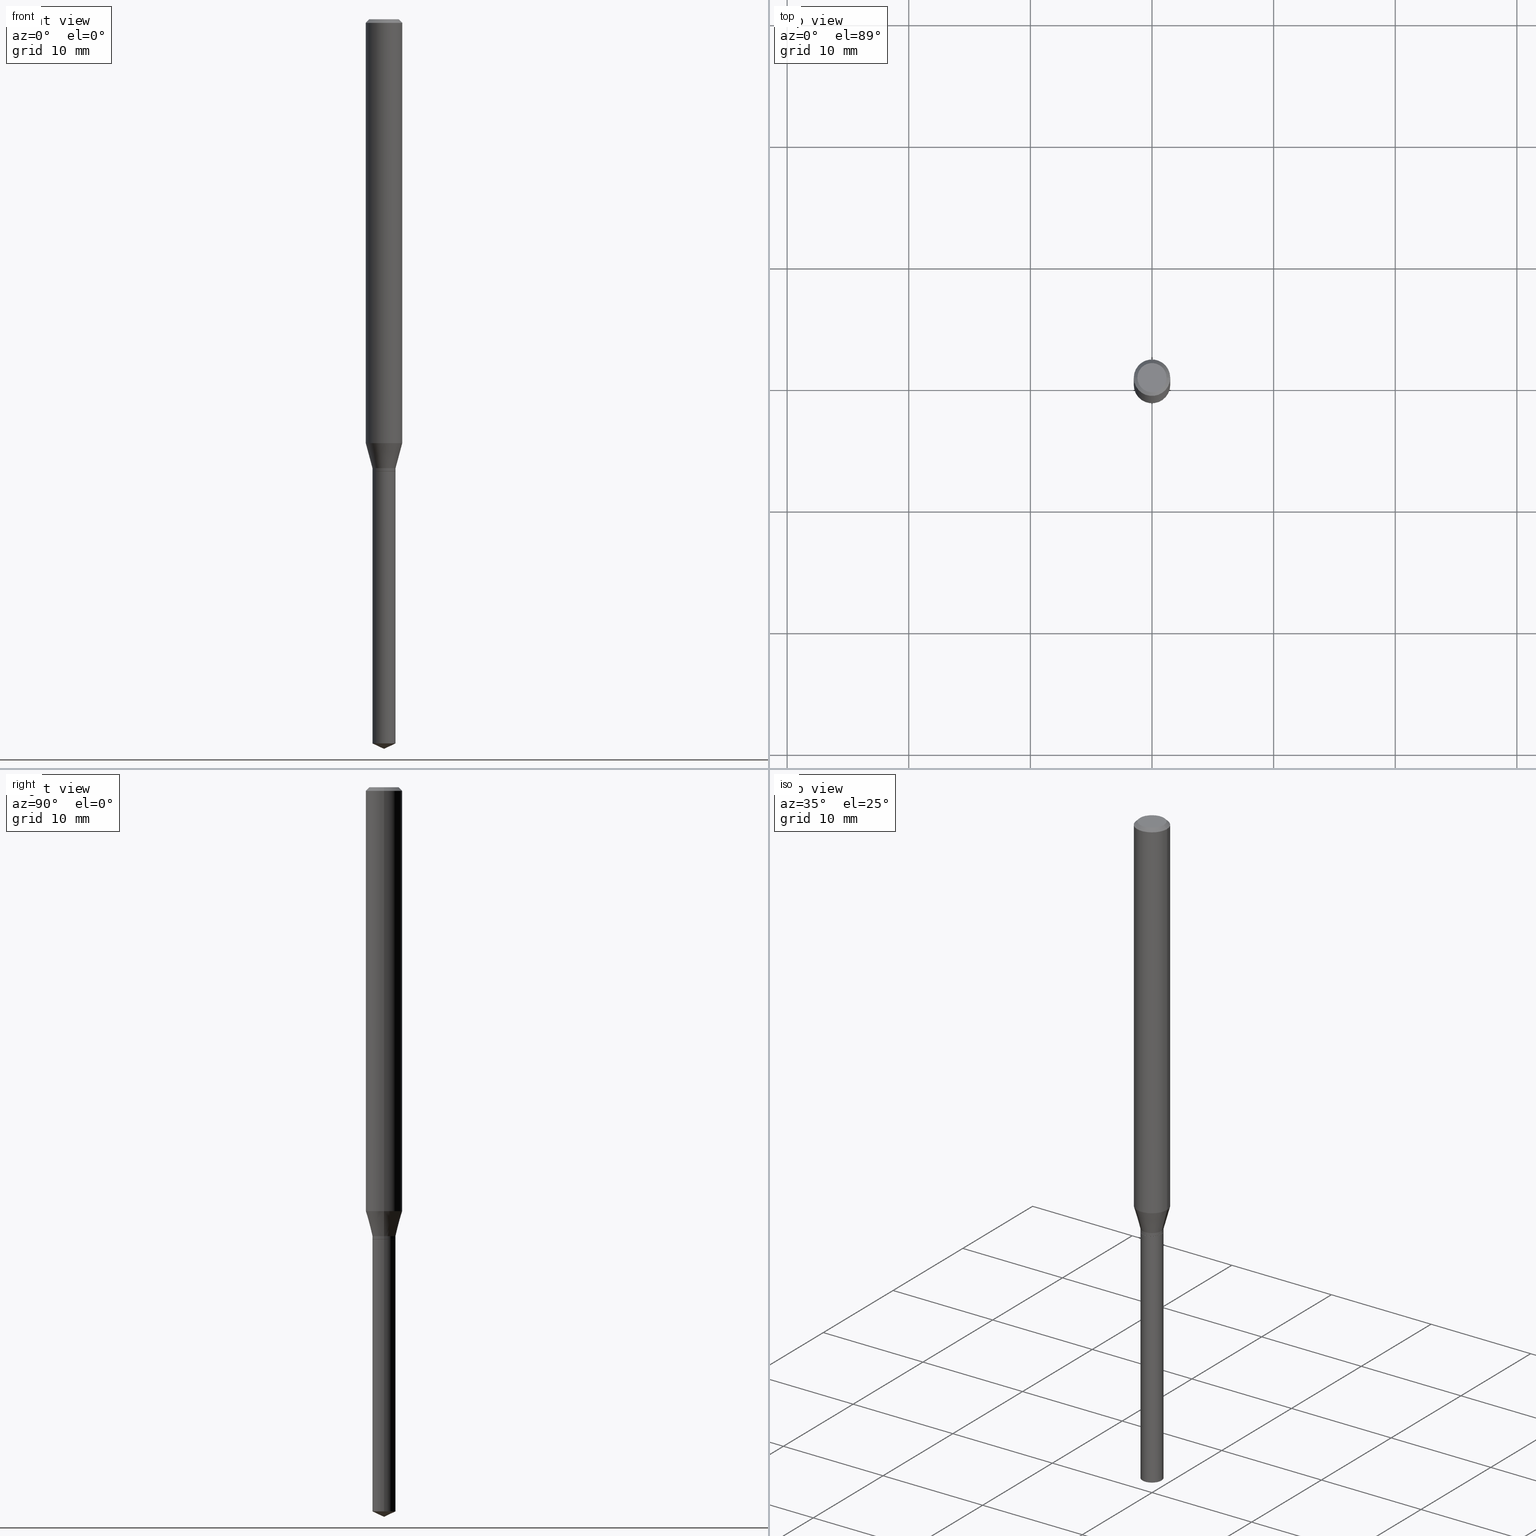
[diagram: canonical four-view strip — front | top / right | iso, engineering-drawing reading convention]
A machine part, canonical four-view strip (front | top / right | iso — engineering-drawing reading convention). The complete STEP part file that produces these views, byte-faithful:
ISO-10303-21;
HEADER;
FILE_DESCRIPTION (( 'STEP AP203' ),
    '1' );
FILE_NAME ('08183.STEP',
    '2024-04-24T13:44:05',
    ( '' ),
    ( '' ),
    'SwSTEP 2.0',
    'SolidWorks 2023',
    '' );
FILE_SCHEMA (( 'CONFIG_CONTROL_DESIGN' ));
ENDSEC;

DATA;
#1 = DIRECTION ( 'NONE',  ( 2.445468806185136597E-29, -3.491481338843145583E-15, -1.000000000000000000 ) ) ;
#2 = CARTESIAN_POINT ( 'NONE',  ( 3.356164079663623520E-29, -4.791712830114137325E-15, -1.372401100016133801 ) ) ;
#3 = ORIENTED_EDGE ( 'NONE', *, *, #98, .T. ) ;
#4 = EDGE_CURVE ( 'NONE', #407, #204, #387, .T. ) ;
#5 = AXIS2_PLACEMENT_3D ( 'NONE', #310, #49, #193 ) ;
#6 = ORIENTED_EDGE ( 'NONE', *, *, #112, .F. ) ;
#7 = APPROVAL_ROLE ( '' ) ;
#8 = DIRECTION ( 'NONE',  ( 0.9063077870366507138, -4.853149677051390623E-15, 0.4226182617406978315 ) ) ;
#9 = DIRECTION ( 'NONE',  ( -2.445468806185136597E-29, 3.491481338843145583E-15, 1.000000000000000000 ) ) ;
#10 = LOCAL_TIME ( 9, 44, 5.000000000000000000, #230 ) ;
#11 = AXIS2_PLACEMENT_3D ( 'NONE', #395, #165, #209 ) ;
#12 = ADVANCED_FACE ( 'NONE', ( #139 ), #67, .T. ) ;
#13 = DIRECTION ( 'NONE',  ( -2.445468806185136877E-29, 3.491481338843145188E-15, 1.000000000000000000 ) ) ;
#14 = CALENDAR_DATE ( 2024, 24, 4 ) ;
#15 = CARTESIAN_POINT ( 'NONE',  ( 3.553755269148240986E-29, -5.073820681606859921E-15, -1.453200000000000269 ) ) ;
#16 = DIRECTION ( 'NONE',  ( -2.445468806185136597E-29, 3.491481338843145583E-15, 1.000000000000000000 ) ) ;
#17 = EDGE_CURVE ( 'NONE', #111, #259, #278, .T. ) ;
#18 = VECTOR ( 'NONE', #13, 39.37007874015748143 ) ;
#19 = DIRECTION ( 'NONE',  ( 1.000000000000000000, -6.982962677686266711E-15, 4.876185090822587894E-29 ) ) ;
#20 = CIRCLE ( 'NONE', #252, 0.03740000000000000269 ) ;
#21 = LINE ( 'NONE', #477, #302 ) ;
#22 = ORIENTED_EDGE ( 'NONE', *, *, #478, .F. ) ;
#23 = CYLINDRICAL_SURFACE ( 'NONE', #58, 0.05905000000000008159 ) ;
#24 = ORIENTED_EDGE ( 'NONE', *, *, #457, .T. ) ;
#25 = DIRECTION ( 'NONE',  ( -2.445468806185136597E-29, 3.491481338843145583E-15, 1.000000000000000000 ) ) ;
#26 = ADVANCED_FACE ( 'NONE', ( #453 ), #144, .T. ) ;
#27 = APPROVAL_PERSON_ORGANIZATION ( #375, #48, #415 ) ;
#28 = ORIENTED_EDGE ( 'NONE', *, *, #122, .F. ) ;
#29 = FACE_OUTER_BOUND ( 'NONE', #335, .T. ) ;
#30 = ORIENTED_EDGE ( 'NONE', *, *, #304, .T. ) ;
#31 = VERTEX_POINT ( 'NONE', #378 ) ;
#32 = ADVANCED_FACE ( 'NONE', ( #338 ), #367, .F. ) ;
#33 = ORIENTED_EDGE ( 'NONE', *, *, #478, .T. ) ;
#34 = LINE ( 'NONE', #38, #455 ) ;
#35 = ORIENTED_EDGE ( 'NONE', *, *, #143, .F. ) ;
#36 = DIRECTION ( 'NONE',  ( -1.000000000000000000, 6.982962677686265922E-15, -4.876176775795935793E-29 ) ) ;
#37 = ORIENTED_EDGE ( 'NONE', *, *, #457, .F. ) ;
#38 = CARTESIAN_POINT ( 'NONE',  ( -0.03740000000000004432, -4.808077698432582531E-15, -1.453200000000000269 ) ) ;
#39 = CC_DESIGN_PERSON_AND_ORGANIZATION_ASSIGNMENT ( #258, #420, ( #404 ) ) ;
#40 = CARTESIAN_POINT ( 'NONE',  ( 3.581144519777514022E-29, -5.112925272601902389E-15, -1.464399999999999924 ) ) ;
#41 = ADVANCED_BREP_SHAPE_REPRESENTATION ( '08183', ( #391, #215, #324 ), #225 ) ;
#42 = VECTOR ( 'NONE', #434, 39.37007874015748143 ) ;
#43 = AXIS2_PLACEMENT_3D ( 'NONE', #64, #248, #358 ) ;
#44 = PERSON_AND_ORGANIZATION_ROLE ( 'classification_officer' ) ;
#45 = DIRECTION ( 'NONE',  ( 1.000000000000000000, -6.982962677686274599E-15, 0.000000000000000000 ) ) ;
#46 = APPROVAL_STATUS ( 'not_yet_approved' ) ;
#47 = CARTESIAN_POINT ( 'NONE',  ( 3.581144519777514022E-29, -5.112925272601902389E-15, -1.464399999999999924 ) ) ;
#48 = APPROVAL ( #74, 'UNSPECIFIED' ) ;
#49 = DIRECTION ( 'NONE',  ( -2.445468806185136597E-29, 3.491481338843145583E-15, 1.000000000000000000 ) ) ;
#50 = LOCAL_TIME ( 9, 44, 5.000000000000000000, #154 ) ;
#51 = PERSON_AND_ORGANIZATION ( #394, #286 ) ;
#52 = CONICAL_SURFACE ( 'NONE', #426, 84.42940631927434936, 1.134464013796316006 ) ;
#53 = FACE_OUTER_BOUND ( 'NONE', #376, .T. ) ;
#54 = PERSON_AND_ORGANIZATION ( #394, #286 ) ;
#55 = DIRECTION ( 'NONE',  ( -0.7071067811868433362, 7.493145998871423856E-15, 0.7071067811862516983 ) ) ;
#56 = ADVANCED_FACE ( 'NONE', ( #306 ), #418, .T. ) ;
#57 = LINE ( 'NONE', #427, #179 ) ;
#58 = AXIS2_PLACEMENT_3D ( 'NONE', #126, #481, #291 ) ;
#59 = DIRECTION ( 'NONE',  ( 1.000000000000000000, -6.982962677686266711E-15, 0.000000000000000000 ) ) ;
#60 = ORIENTED_EDGE ( 'NONE', *, *, #372, .T. ) ;
#61 = DIRECTION ( 'NONE',  ( -2.445468806185136597E-29, 3.491481338843145583E-15, 1.000000000000000000 ) ) ;
#62 = ORIENTED_EDGE ( 'NONE', *, *, #384, .T. ) ;
#63 = ADVANCED_FACE ( 'NONE', ( #82 ), #414, .T. ) ;
#64 = CARTESIAN_POINT ( 'NONE',  ( 3.581144519777514022E-29, -5.112925272601902389E-15, -1.464399999999999924 ) ) ;
#65 = ORIENTED_EDGE ( 'NONE', *, *, #17, .T. ) ;
#66 = CARTESIAN_POINT ( 'NONE',  ( 0.05904999999999999832, -4.535783407291118600E-16, -0.01181000000000007565 ) ) ;
#67 = CONICAL_SURFACE ( 'NONE', #339, 0.05904999999999999832, 0.7853981633974450594 ) ;
#68 = ORIENTED_EDGE ( 'NONE', *, *, #4, .T. ) ;
#69 = CARTESIAN_POINT ( 'NONE',  ( -0.03690000000000000224, -4.848085775932315486E-15, -1.464399999999999924 ) ) ;
#70 = ADVANCED_FACE ( 'NONE', ( #107 ), #257, .T. ) ;
#71 = EDGE_LOOP ( 'NONE', ( #486, #294, #416, #3 ) ) ;
#72 = CARTESIAN_POINT ( 'NONE',  ( 0.000000000000000000, 0.000000000000000000, 0.000000000000000000 ) ) ;
#73 = CARTESIAN_POINT ( 'NONE',  ( 0.000000000000000000, 0.000000000000000000, 0.000000000000000000 ) ) ;
#74 = APPROVAL_STATUS ( 'not_yet_approved' ) ;
#75 = SECURITY_CLASSIFICATION ( '', '', #276 ) ;
#76 = ORIENTED_EDGE ( 'NONE', *, *, #98, .F. ) ;
#77 = AXIS2_PLACEMENT_3D ( 'NONE', #343, #9, #231 ) ;
#78 = MECHANICAL_CONTEXT ( 'NONE', #412, 'mechanical' ) ;
#79 = EDGE_LOOP ( 'NONE', ( #226, #97, #301 ) ) ;
#80 = CARTESIAN_POINT ( 'NONE',  ( 3.356164079663623520E-29, -4.791712830114137325E-15, -1.372401100016133801 ) ) ;
#81 = EDGE_LOOP ( 'NONE', ( #216, #419, #22, #206 ) ) ;
#82 = FACE_OUTER_BOUND ( 'NONE', #441, .T. ) ;
#83 = CONICAL_SURFACE ( 'NONE', #316, 84.42940631927434936, 1.134464013796316006 ) ;
#84 = CIRCLE ( 'NONE', #227, 0.04724000000000000421 ) ;
#85 = CARTESIAN_POINT ( 'NONE',  ( -0.03740000000000000269, -4.847182289427624999E-15, -1.464399999999999924 ) ) ;
#86 = DATE_TIME_ROLE ( 'classification_date' ) ;
#87 = CARTESIAN_POINT ( 'NONE',  ( -0.03690000000000000224, -4.850735003106425898E-15, -1.464399999999999924 ) ) ;
#88 = CALENDAR_DATE ( 2024, 24, 4 ) ;
#89 = CARTESIAN_POINT ( 'NONE',  ( 5.776197320209293305E-29, -8.246878922347511025E-15, -2.362000000000000099 ) ) ;
#90 = AXIS2_PLACEMENT_3D ( 'NONE', #47, #272, #392 ) ;
#91 = LINE ( 'NONE', #237, #463 ) ;
#92 = DIRECTION ( 'NONE',  ( -2.445468806185136597E-29, 3.491481338843145583E-15, 1.000000000000000000 ) ) ;
#93 = DIRECTION ( 'NONE',  ( -2.445468806185136597E-29, 3.491481338843145583E-15, 1.000000000000000000 ) ) ;
#94 = EDGE_LOOP ( 'NONE', ( #249, #37 ) ) ;
#95 = CIRCLE ( 'NONE', #90, 0.03740000000000000269 ) ;
#96 = FACE_OUTER_BOUND ( 'NONE', #254, .T. ) ;
#97 = ORIENTED_EDGE ( 'NONE', *, *, #122, .T. ) ;
#98 = EDGE_CURVE ( 'NONE', #130, #411, #435, .T. ) ;
#99 = CARTESIAN_POINT ( 'NONE',  ( 0.05905000000000017180, -5.204056776231511456E-15, -1.372401100016133801 ) ) ;
#100 = ORIENTED_EDGE ( 'NONE', *, *, #355, .F. ) ;
#101 = DIRECTION ( 'NONE',  ( -2.445468806185136597E-29, 3.491481338843145583E-15, 1.000000000000000000 ) ) ;
#102 = EDGE_LOOP ( 'NONE', ( #175, #219, #240, #439 ) ) ;
#103 = EDGE_CURVE ( 'NONE', #403, #320, #197, .T. ) ;
#104 = CARTESIAN_POINT ( 'NONE',  ( -0.03740000000000000269, -6.383713560400863515E-15, -1.464399999999999924 ) ) ;
#105 = AXIS2_PLACEMENT_3D ( 'NONE', #195, #121, #203 ) ;
#106 = EDGE_LOOP ( 'NONE', ( #68, #264, #328, #246 ) ) ;
#107 = FACE_OUTER_BOUND ( 'NONE', #484, .T. ) ;
#108 = CARTESIAN_POINT ( 'NONE',  ( 2.888098660104664642E-31, -4.123439461173780879E-17, -0.01181000000000007565 ) ) ;
#109 = PERSON_AND_ORGANIZATION ( #394, #286 ) ;
#110 = AXIS2_PLACEMENT_3D ( 'NONE', #184, #261, #422 ) ;
#111 = VERTEX_POINT ( 'NONE', #158 ) ;
#112 = EDGE_CURVE ( 'NONE', #259, #170, #161, .T. ) ;
#113 = DIRECTION ( 'NONE',  ( 0.2588190451025216832, 1.565188264969619798E-15, 0.9659258262890679791 ) ) ;
#114 = CARTESIAN_POINT ( 'NONE',  ( 2.888098660104664642E-31, -4.123439461173780879E-17, -0.01181000000000007565 ) ) ;
#115 = DIRECTION ( 'NONE',  ( -0.2588190451025216832, 5.211531920934551831E-15, 0.9659258262890679791 ) ) ;
#116 = ORIENTED_EDGE ( 'NONE', *, *, #368, .F. ) ;
#117 = ADVANCED_FACE ( 'NONE', ( #196 ), #251, .T. ) ;
#118 = CARTESIAN_POINT ( 'NONE',  ( -0.05904999999999999832, -1.996898126896595667E-15, -0.01181000000000007565 ) ) ;
#119 = DIRECTION ( 'NONE',  ( 1.000000000000000000, -6.982962677686266711E-15, 0.000000000000000000 ) ) ;
#120 = CARTESIAN_POINT ( 'NONE',  ( 0.04724000000000000421, -3.852183633974369345E-16, -3.380025165621689721E-19 ) ) ;
#121 = DIRECTION ( 'NONE',  ( -2.445468806185136597E-29, 3.491481338843145583E-15, 1.000000000000000000 ) ) ;
#122 = EDGE_CURVE ( 'NONE', #224, #407, #57, .T. ) ;
#123 = AXIS2_PLACEMENT_3D ( 'NONE', #187, #340, #190 ) ;
#124 = LINE ( 'NONE', #89, #347 ) ;
#125 = CARTESIAN_POINT ( 'NONE',  ( 3.579921785374421781E-29, -5.111179531932481675E-15, -1.463900000000000201 ) ) ;
#126 = CARTESIAN_POINT ( 'NONE',  ( 0.000000000000000000, 0.000000000000000000, 0.000000000000000000 ) ) ;
#127 = EDGE_CURVE ( 'NONE', #303, #354, #208, .T. ) ;
#128 = ORIENTED_EDGE ( 'NONE', *, *, #466, .T. ) ;
#129 = CARTESIAN_POINT ( 'NONE',  ( 0.05905000000000008159, -4.123439461173746736E-16, 2.879382386107504424E-30 ) ) ;
#130 = VERTEX_POINT ( 'NONE', #118 ) ;
#131 = DIRECTION ( 'NONE',  ( -2.445468806185136597E-29, 3.491481338843145583E-15, 1.000000000000000000 ) ) ;
#132 = VERTEX_POINT ( 'NONE', #120 ) ;
#133 = ADVANCED_FACE ( 'NONE', ( #461 ), #236, .T. ) ;
#134 = DIRECTION ( 'NONE',  ( 1.000000000000000000, -6.982962677686266711E-15, 0.000000000000000000 ) ) ;
#135 = ORIENTED_EDGE ( 'NONE', *, *, #232, .F. ) ;
#136 = APPROVAL_PERSON_ORGANIZATION ( #109, #210, #381 ) ;
#137 = APPROVAL_DATE_TIME ( #149, #48 ) ;
#138 = VECTOR ( 'NONE', #348, 39.37007874015748143 ) ;
#139 = FACE_OUTER_BOUND ( 'NONE', #102, .T. ) ;
#140 = DIRECTION ( 'NONE',  ( 1.000000000000000000, -6.982962677686268288E-15, 0.000000000000000000 ) ) ;
#141 = DIRECTION ( 'NONE',  ( -2.445468806185136597E-29, 3.491481338843145583E-15, 1.000000000000000000 ) ) ;
#142 = DATE_TIME_ROLE ( 'creation_date' ) ;
#143 = EDGE_CURVE ( 'NONE', #331, #130, #153, .T. ) ;
#144 = CYLINDRICAL_SURFACE ( 'NONE', #409, 0.03740000000000000269 ) ;
#145 = LENGTH_MEASURE_WITH_UNIT ( LENGTH_MEASURE( 0.02539999999999999897 ), #212 );
#146 = VECTOR ( 'NONE', #113, 39.37007874015748143 ) ;
#147 = EDGE_LOOP ( 'NONE', ( #479, #285 ) ) ;
#148 = CONICAL_SURFACE ( 'NONE', #105, 0.03740000000000004432, 0.2617993877991502960 ) ;
#149 = DATE_AND_TIME ( #364, #351 ) ;
#150 = EDGE_LOOP ( 'NONE', ( #476, #30, #177, #116 ) ) ;
#151 = EDGE_CURVE ( 'NONE', #407, #354, #91, .T. ) ;
#152 = DATE_AND_TIME ( #159, #10 ) ;
#153 = LINE ( 'NONE', #192, #42 ) ;
#154 = COORDINATED_UNIVERSAL_TIME_OFFSET ( 5, 0, .BEHIND. ) ;
#155 = LINE ( 'NONE', #275, #242 ) ;
#156 = CC_DESIGN_APPROVAL ( #380, ( #75 ) ) ;
#157 = CIRCLE ( 'NONE', #5, 0.05904999999999999832 ) ;
#158 = CARTESIAN_POINT ( 'NONE',  ( 0.03690000000000000224, -5.370596595408524994E-15, -1.464399999999999924 ) ) ;
#159 = CALENDAR_DATE ( 2024, 24, 4 ) ;
#160 = DIRECTION ( 'NONE',  ( -0.9063077870366507138, 7.915267918739014631E-15, 0.4226182617406978315 ) ) ;
#161 = LINE ( 'NONE', #87, #398 ) ;
#162 = CLOSED_SHELL ( 'NONE', ( #417, #12, #70, #117, #63, #280, #256, #322, #56, #32, #405, #362 ) ) ;
#163 = AXIS2_PLACEMENT_3D ( 'NONE', #108, #382, #277 ) ;
#164 = AXIS2_PLACEMENT_3D ( 'NONE', #201, #25, #473 ) ;
#165 = DIRECTION ( 'NONE',  ( -2.445468806185136597E-29, 3.491481338843145583E-15, 1.000000000000000000 ) ) ;
#166 = EDGE_CURVE ( 'NONE', #354, #303, #95, .T. ) ;
#167 = CARTESIAN_POINT ( 'NONE',  ( 0.000000000000000000, 0.000000000000000000, 0.000000000000000000 ) ) ;
#168 = ORIENTED_EDGE ( 'NONE', *, *, #127, .F. ) ;
#169 = DIRECTION ( 'NONE',  ( 1.000000000000000000, -6.982962677686274599E-15, 0.000000000000000000 ) ) ;
#170 = VERTEX_POINT ( 'NONE', #229 ) ;
#171 = AXIS2_PLACEMENT_3D ( 'NONE', #174, #327, #483 ) ;
#172 = CARTESIAN_POINT ( 'NONE',  ( 3.579921785374421781E-29, -5.111179531932481675E-15, -1.463900000000000201 ) ) ;
#173 = ORIENTED_EDGE ( 'NONE', *, *, #488, .T. ) ;
#174 = CARTESIAN_POINT ( 'NONE',  ( 3.581144519777514022E-29, -5.112925272601902389E-15, -1.464399999999999924 ) ) ;
#175 = ORIENTED_EDGE ( 'NONE', *, *, #384, .F. ) ;
#176 = DIRECTION ( 'NONE',  ( 2.438088387897960049E-29, -3.491481338843145188E-15, -1.000000000000000000 ) ) ;
#177 = ORIENTED_EDGE ( 'NONE', *, *, #103, .T. ) ;
#178 = APPLICATION_PROTOCOL_DEFINITION ( 'international standard', 'config_control_design', 1994, #379 ) ;
#179 = VECTOR ( 'NONE', #8, 39.37007874015748143 ) ;
#180 = DIRECTION ( 'NONE',  ( -2.445468806185136597E-29, 3.491481338843145583E-15, 1.000000000000000000 ) ) ;
#181 = EDGE_CURVE ( 'NONE', #170, #31, #155, .T. ) ;
#182 = DIRECTION ( 'NONE',  ( -2.445468806185136597E-29, 3.491481338843145583E-15, 1.000000000000000000 ) ) ;
#183 = DIRECTION ( 'NONE',  ( 1.000000000000000000, -6.982962677686261189E-15, 0.000000000000000000 ) ) ;
#184 = CARTESIAN_POINT ( 'NONE',  ( 3.581144519777514022E-29, -5.112925272601902389E-15, -1.464399999999999924 ) ) ;
#185 = DIRECTION ( 'NONE',  ( -2.445468806185136597E-29, 3.491481338843145583E-15, 1.000000000000000000 ) ) ;
#186 = DIRECTION ( 'NONE',  ( 1.000000000000000000, -6.982962677686268288E-15, 0.000000000000000000 ) ) ;
#187 = CARTESIAN_POINT ( 'NONE',  ( 4.132873053354867254E-48, -5.900647395337818946E-34, -1.690012582823346072E-19 ) ) ;
#188 = AXIS2_PLACEMENT_3D ( 'NONE', #334, #298, #451 ) ;
#189 = EDGE_CURVE ( 'NONE', #111, #403, #315, .T. ) ;
#190 = DIRECTION ( 'NONE',  ( -1.000000000000000000, 6.982962677686265922E-15, -4.876176775795935793E-29 ) ) ;
#191 = COORDINATED_UNIVERSAL_TIME_OFFSET ( 5, 0, .BEHIND. ) ;
#192 = CARTESIAN_POINT ( 'NONE',  ( -0.05905000000000008159, 4.195754854663397395E-16, -2.904631170795525745E-30 ) ) ;
#193 = DIRECTION ( 'NONE',  ( 1.000000000000000000, -6.982962677686266711E-15, 0.000000000000000000 ) ) ;
#194 = EDGE_CURVE ( 'NONE', #224, #204, #124, .T. ) ;
#195 = CARTESIAN_POINT ( 'NONE',  ( 3.553755269148240986E-29, -5.073820681606859921E-15, -1.453200000000000269 ) ) ;
#196 = FACE_OUTER_BOUND ( 'NONE', #81, .T. ) ;
#197 = LINE ( 'NONE', #465, #18 ) ;
#198 = ADVANCED_FACE ( 'NONE', ( #281 ), #52, .T. ) ;
#199 = PRODUCT_DEFINITION_FORMATION_WITH_SPECIFIED_SOURCE ( 'ANY', '', #404, .NOT_KNOWN. ) ;
#200 = VECTOR ( 'NONE', #445, 39.37007874015748143 ) ;
#201 = CARTESIAN_POINT ( 'NONE',  ( 3.553755269148240986E-29, -5.073820681606859921E-15, -1.453200000000000269 ) ) ;
#202 = ORIENTED_EDGE ( 'NONE', *, *, #372, .F. ) ;
#203 = DIRECTION ( 'NONE',  ( 1.000000000000000000, -6.982962677686266711E-15, 0.000000000000000000 ) ) ;
#204 = VERTEX_POINT ( 'NONE', #464 ) ;
#205 = DIRECTION ( 'NONE',  ( -2.445468806185136597E-29, 3.491481338843145583E-15, 1.000000000000000000 ) ) ;
#206 = ORIENTED_EDGE ( 'NONE', *, *, #488, .F. ) ;
#207 = LOCAL_TIME ( 9, 44, 5.000000000000000000, #191 ) ;
#208 = CIRCLE ( 'NONE', #77, 0.03740000000000000269 ) ;
#209 = DIRECTION ( 'NONE',  ( 1.000000000000000000, -6.982962677686261189E-15, 0.000000000000000000 ) ) ;
#210 = APPROVAL ( #46, 'UNSPECIFIED' ) ;
#211 = ORIENTED_EDGE ( 'NONE', *, *, #181, .T. ) ;
#212 =( LENGTH_UNIT ( ) NAMED_UNIT ( * ) SI_UNIT ( $, .METRE. ) );
#213 = ORIENTED_EDGE ( 'NONE', *, *, #438, .F. ) ;
#214 = DIRECTION ( 'NONE',  ( 1.000000000000000000, 0.000000000000000000, 0.000000000000000000 ) ) ;
#215 = MANIFOLD_SOLID_BREP ( 'Body-Move/Copy2[2]', #162 ) ;
#216 = ORIENTED_EDGE ( 'NONE', *, *, #355, .T. ) ;
#217 = DIRECTION ( 'NONE',  ( -2.445468806185136597E-29, 3.491481338843145583E-15, 1.000000000000000000 ) ) ;
#218 = CONICAL_SURFACE ( 'NONE', #11, 0.03690000000000000224, 0.7853981633978666110 ) ;
#219 = ORIENTED_EDGE ( 'NONE', *, *, #329, .T. ) ;
#220 =( NAMED_UNIT ( * ) PLANE_ANGLE_UNIT ( ) SI_UNIT ( $, .RADIAN. ) );
#221 = ORIENTED_EDGE ( 'NONE', *, *, #189, .T. ) ;
#222 =( NAMED_UNIT ( * ) SI_UNIT ( $, .STERADIAN. ) SOLID_ANGLE_UNIT ( ) );
#223 = EDGE_CURVE ( 'NONE', #204, #303, #270, .T. ) ;
#224 = VERTEX_POINT ( 'NONE', #430 ) ;
#225 =( GEOMETRIC_REPRESENTATION_CONTEXT ( 3 ) GLOBAL_UNCERTAINTY_ASSIGNED_CONTEXT ( ( #274 ) ) GLOBAL_UNIT_ASSIGNED_CONTEXT ( ( #300, #220, #222 ) ) REPRESENTATION_CONTEXT ( 'NONE', 'WORKASPACE' ) );
#226 = ORIENTED_EDGE ( 'NONE', *, *, #194, .F. ) ;
#227 = AXIS2_PLACEMENT_3D ( 'NONE', #284, #410, #400 ) ;
#228 = PERSON_AND_ORGANIZATION_ROLE ( 'creator' ) ;
#229 = CARTESIAN_POINT ( 'NONE',  ( -0.03740000000000004432, -4.826757123595393013E-15, -1.463900000000000201 ) ) ;
#230 = COORDINATED_UNIVERSAL_TIME_OFFSET ( 5, 0, .BEHIND. ) ;
#231 = DIRECTION ( 'NONE',  ( 1.000000000000000000, -6.982962677686274599E-15, 0.000000000000000000 ) ) ;
#232 = EDGE_CURVE ( 'NONE', #411, #130, #157, .T. ) ;
#233 = FACE_OUTER_BOUND ( 'NONE', #79, .T. ) ;
#234 = CC_DESIGN_APPROVAL ( #210, ( #199 ) ) ;
#235 = AXIS2_PLACEMENT_3D ( 'NONE', #456, #185, #45 ) ;
#236 = CYLINDRICAL_SURFACE ( 'NONE', #262, 0.03740000000000000269 ) ;
#237 = CARTESIAN_POINT ( 'NONE',  ( 0.03740000000000000269, -5.374088076747368790E-15, -1.464399999999999924 ) ) ;
#238 = ADVANCED_FACE ( 'NONE', ( #233 ), #83, .T. ) ;
#239 = FACE_OUTER_BOUND ( 'NONE', #150, .T. ) ;
#240 = ORIENTED_EDGE ( 'NONE', *, *, #232, .T. ) ;
#241 = CIRCLE ( 'NONE', #250, 0.05905000000000017180 ) ;
#242 = VECTOR ( 'NONE', #312, 39.37007874015748143 ) ;
#243 = CARTESIAN_POINT ( 'NONE',  ( -0.04724000000000000421, 3.504923541997677355E-16, -3.380025165670481712E-19 ) ) ;
#244 = ORIENTED_EDGE ( 'NONE', *, *, #314, .T. ) ;
#245 = FACE_OUTER_BOUND ( 'NONE', #94, .T. ) ;
#246 = ORIENTED_EDGE ( 'NONE', *, *, #151, .F. ) ;
#247 = CC_DESIGN_PERSON_AND_ORGANIZATION_ASSIGNMENT ( #51, #44, ( #75 ) ) ;
#248 = DIRECTION ( 'NONE',  ( -2.438088387897960049E-29, 3.491481338843145188E-15, 1.000000000000000000 ) ) ;
#249 = ORIENTED_EDGE ( 'NONE', *, *, #17, .F. ) ;
#250 = AXIS2_PLACEMENT_3D ( 'NONE', #80, #182, #140 ) ;
#251 = CONICAL_SURFACE ( 'NONE', #389, 0.03740000000000004432, 0.2617993877991502960 ) ;
#252 = AXIS2_PLACEMENT_3D ( 'NONE', #293, #61, #169 ) ;
#253 = CARTESIAN_POINT ( 'NONE',  ( 0.05904999999999999832, -4.463468013801466955E-16, -0.01181000000000007565 ) ) ;
#254 = EDGE_LOOP ( 'NONE', ( #6, #24, #221, #283 ) ) ;
#255 = COORDINATED_UNIVERSAL_TIME_OFFSET ( 5, 0, .BEHIND. ) ;
#256 = ADVANCED_FACE ( 'NONE', ( #53 ), #148, .T. ) ;
#257 = CYLINDRICAL_SURFACE ( 'NONE', #480, 0.05905000000000008159 ) ;
#258 = PERSON_AND_ORGANIZATION ( #394, #286 ) ;
#259 = VERTEX_POINT ( 'NONE', #69 ) ;
#260 = AXIS2_PLACEMENT_3D ( 'NONE', #2, #217, #186 ) ;
#261 = DIRECTION ( 'NONE',  ( -2.445468806185136597E-29, 3.491481338843145583E-15, 1.000000000000000000 ) ) ;
#262 = AXIS2_PLACEMENT_3D ( 'NONE', #349, #16, #431 ) ;
#263 = ORIENTED_EDGE ( 'NONE', *, *, #390, .T. ) ;
#264 = ORIENTED_EDGE ( 'NONE', *, *, #223, .T. ) ;
#265 = CARTESIAN_POINT ( 'NONE',  ( 3.581144519777514022E-29, -5.112925272601902389E-15, -1.464399999999999924 ) ) ;
#266 = DIRECTION ( 'NONE',  ( 2.445468806185136597E-29, -3.491481338843145583E-15, -1.000000000000000000 ) ) ;
#267 = PRODUCT_DEFINITION_SHAPE ( 'NONE', 'NONE',  #432 ) ;
#268 = DATE_AND_TIME ( #88, #50 ) ;
#269 = CIRCLE ( 'NONE', #110, 0.03690000000000000224 ) ;
#270 = LINE ( 'NONE', #85, #295 ) ;
#271 = CIRCLE ( 'NONE', #332, 0.03740000000000004432 ) ;
#272 = DIRECTION ( 'NONE',  ( -2.445468806185136597E-29, 3.491481338843145583E-15, 1.000000000000000000 ) ) ;
#273 = CC_DESIGN_PERSON_AND_ORGANIZATION_ASSIGNMENT ( #385, #228, ( #199 ) ) ;
#274 = UNCERTAINTY_MEASURE_WITH_UNIT (LENGTH_MEASURE( 1.000000000000000082E-05 ), #300, 'distance_accuracy_value', 'NONE');
#275 = CARTESIAN_POINT ( 'NONE',  ( -0.03740000000000004432, 2.657429831742777844E-16, -1.839681723755337142E-30 ) ) ;
#276 = SECURITY_CLASSIFICATION_LEVEL ( 'unclassified' ) ;
#277 = DIRECTION ( 'NONE',  ( 1.000000000000000000, -6.982962677686266711E-15, 0.000000000000000000 ) ) ;
#278 = CIRCLE ( 'NONE', #287, 0.03690000000000000224 ) ;
#279 = CIRCLE ( 'NONE', #449, 0.04724000000000000421 ) ;
#280 = ADVANCED_FACE ( 'NONE', ( #239 ), #282, .T. ) ;
#281 = FACE_OUTER_BOUND ( 'NONE', #341, .T. ) ;
#282 = CYLINDRICAL_SURFACE ( 'NONE', #487, 0.03740000000000004432 ) ;
#283 = ORIENTED_EDGE ( 'NONE', *, *, #304, .F. ) ;
#284 = CARTESIAN_POINT ( 'NONE',  ( 8.265746106709734507E-48, -1.180129479067563789E-33, -3.380025165646692144E-19 ) ) ;
#285 = ORIENTED_EDGE ( 'NONE', *, *, #127, .T. ) ;
#286 = ORGANIZATION ( 'UNSPECIFIED', 'UNSPECIFIED', '' ) ;
#287 = AXIS2_PLACEMENT_3D ( 'NONE', #490, #141, #183 ) ;
#288 = DIRECTION ( 'NONE',  ( -2.445468806185136877E-29, 3.491481338843145188E-15, 1.000000000000000000 ) ) ;
#289 = ORIENTED_EDGE ( 'NONE', *, *, #143, .T. ) ;
#290 = EDGE_CURVE ( 'NONE', #363, #130, #21, .T. ) ;
#291 = DIRECTION ( 'NONE',  ( 1.000000000000000000, -6.982962677686267499E-15, 4.876176775795936353E-29 ) ) ;
#292 = EDGE_LOOP ( 'NONE', ( #244, #62 ) ) ;
#293 = CARTESIAN_POINT ( 'NONE',  ( 5.733548573088630177E-29, -8.185987814548377053E-15, -2.344560093585003280 ) ) ;
#294 = ORIENTED_EDGE ( 'NONE', *, *, #314, .F. ) ;
#295 = VECTOR ( 'NONE', #383, 39.37007874015748143 ) ;
#296 = PRODUCT_RELATED_PRODUCT_CATEGORY ( 'detail', '', ( #404 ) ) ;
#297 = AXIS2_PLACEMENT_3D ( 'NONE', #125, #93, #59 ) ;
#298 = DIRECTION ( 'NONE',  ( -2.445468806185136597E-29, 3.491481338843145583E-15, 1.000000000000000000 ) ) ;
#299 = DIRECTION ( 'NONE',  ( 1.000000000000000000, -6.982962677686267499E-15, 4.876176775795936353E-29 ) ) ;
#300 =( CONVERSION_BASED_UNIT ( 'INCH', #145 ) LENGTH_UNIT ( ) NAMED_UNIT ( #353 ) );
#301 = ORIENTED_EDGE ( 'NONE', *, *, #390, .F. ) ;
#302 = VECTOR ( 'NONE', #447, 39.37007874015748143 ) ;
#303 = VERTEX_POINT ( 'NONE', #104 ) ;
#304 = EDGE_CURVE ( 'NONE', #170, #403, #369, .T. ) ;
#305 = PERSON_AND_ORGANIZATION ( #394, #286 ) ;
#306 = FACE_OUTER_BOUND ( 'NONE', #71, .T. ) ;
#307 = PERSON_AND_ORGANIZATION ( #394, #286 ) ;
#308 = DIRECTION ( 'NONE',  ( -2.445468806185136597E-29, 3.491481338843145583E-15, 1.000000000000000000 ) ) ;
#309 = CC_DESIGN_DATE_AND_TIME_ASSIGNMENT ( #370, #142, ( #432 ) ) ;
#310 = CARTESIAN_POINT ( 'NONE',  ( 2.888098660104664642E-31, -4.123439461173780879E-17, -0.01181000000000007565 ) ) ;
#311 = CIRCLE ( 'NONE', #164, 0.03740000000000004432 ) ;
#312 = DIRECTION ( 'NONE',  ( -2.445468806185136877E-29, 3.491481338843145188E-15, 1.000000000000000000 ) ) ;
#313 = CARTESIAN_POINT ( 'NONE',  ( -9.050210213589845843E-28, 1.292130163076976058E-13, 37.00807874015747956 ) ) ;
#314 = EDGE_CURVE ( 'NONE', #363, #132, #279, .T. ) ;
#315 = LINE ( 'NONE', #393, #138 ) ;
#316 = AXIS2_PLACEMENT_3D ( 'NONE', #346, #388, #468 ) ;
#317 = CIRCLE ( 'NONE', #297, 0.03740000000000004432 ) ;
#318 = CARTESIAN_POINT ( 'NONE',  ( 0.03740000000000000269, -5.374088076747368790E-15, -1.464399999999999924 ) ) ;
#319 = DIRECTION ( 'NONE',  ( 1.000000000000000000, -6.982962677686266711E-15, 4.876176775795935793E-29 ) ) ;
#320 = VERTEX_POINT ( 'NONE', #475 ) ;
#321 = LINE ( 'NONE', #129, #471 ) ;
#322 = ADVANCED_FACE ( 'NONE', ( #437 ), #23, .T. ) ;
#323 = ORIENTED_EDGE ( 'NONE', *, *, #368, .T. ) ;
#324 = AXIS2_PLACEMENT_3D ( 'NONE', #72, #489, #214 ) ;
#325 = CARTESIAN_POINT ( 'NONE',  ( 8.265746106709734507E-48, -1.180129479067563789E-33, -3.380025165646692144E-19 ) ) ;
#326 = ORIENTED_EDGE ( 'NONE', *, *, #399, .T. ) ;
#327 = DIRECTION ( 'NONE',  ( -2.445468806185136597E-29, 3.491481338843145583E-15, 1.000000000000000000 ) ) ;
#328 = ORIENTED_EDGE ( 'NONE', *, *, #166, .F. ) ;
#329 = EDGE_CURVE ( 'NONE', #132, #411, #361, .T. ) ;
#330 = LINE ( 'NONE', #336, #146 ) ;
#331 = VERTEX_POINT ( 'NONE', #350 ) ;
#332 = AXIS2_PLACEMENT_3D ( 'NONE', #352, #101, #134 ) ;
#333 = CALENDAR_DATE ( 2024, 24, 4 ) ;
#334 = CARTESIAN_POINT ( 'NONE',  ( 0.000000000000000000, 0.000000000000000000, 0.000000000000000000 ) ) ;
#335 = EDGE_LOOP ( 'NONE', ( #65, #359, #202, #421 ) ) ;
#336 = CARTESIAN_POINT ( 'NONE',  ( 0.03740000000000004432, -5.334983485752326321E-15, -1.453200000000000269 ) ) ;
#337 = CC_DESIGN_PERSON_AND_ORGANIZATION_ASSIGNMENT ( #54, #462, ( #199 ) ) ;
#338 = FACE_OUTER_BOUND ( 'NONE', #292, .T. ) ;
#339 = AXIS2_PLACEMENT_3D ( 'NONE', #114, #1, #371 ) ;
#340 = DIRECTION ( 'NONE',  ( 2.438088387897960049E-29, -3.491481338843145188E-15, -1.000000000000000000 ) ) ;
#341 = EDGE_LOOP ( 'NONE', ( #28, #448, #474 ) ) ;
#342 = CC_DESIGN_DATE_AND_TIME_ASSIGNMENT ( #268, #86, ( #75 ) ) ;
#343 = CARTESIAN_POINT ( 'NONE',  ( 3.581144519777514022E-29, -5.112925272601902389E-15, -1.464399999999999924 ) ) ;
#344 = APPROVAL_DATE_TIME ( #152, #210 ) ;
#345 = APPROVAL_PERSON_ORGANIZATION ( #307, #380, #7 ) ;
#346 = CARTESIAN_POINT ( 'NONE',  ( -9.050210213589845843E-28, 1.292130163076976058E-13, 37.00807874015747956 ) ) ;
#347 = VECTOR ( 'NONE', #160, 39.37007874015748143 ) ;
#348 = DIRECTION ( 'NONE',  ( 0.7071067811868433362, -2.468850131085355312E-15, 0.7071067811862516983 ) ) ;
#349 = CARTESIAN_POINT ( 'NONE',  ( 3.581144519777514022E-29, -5.112925272601902389E-15, -1.464399999999999924 ) ) ;
#350 = CARTESIAN_POINT ( 'NONE',  ( -0.05905000000000017180, -4.372137344647797043E-15, -1.372401100016133801 ) ) ;
#351 = LOCAL_TIME ( 9, 44, 5.000000000000000000, #485 ) ;
#352 = CARTESIAN_POINT ( 'NONE',  ( 3.553755269148240986E-29, -5.073820681606859921E-15, -1.453200000000000269 ) ) ;
#353 = DIMENSIONAL_EXPONENTS ( 1.000000000000000000, 0.000000000000000000, 0.000000000000000000, 0.000000000000000000, 0.000000000000000000, 0.000000000000000000, 0.000000000000000000 ) ;
#354 = VERTEX_POINT ( 'NONE', #318 ) ;
#355 = EDGE_CURVE ( 'NONE', #320, #31, #271, .T. ) ;
#356 = DIRECTION ( 'NONE',  ( -2.445468806185136597E-29, 3.491481338843145583E-15, 1.000000000000000000 ) ) ;
#357 = VERTEX_POINT ( 'NONE', #99 ) ;
#358 = DIRECTION ( 'NONE',  ( 1.000000000000000000, -6.982962677686265922E-15, 4.876176775795935793E-29 ) ) ;
#359 = ORIENTED_EDGE ( 'NONE', *, *, #112, .T. ) ;
#360 = AXIS2_PLACEMENT_3D ( 'NONE', #172, #356, #440 ) ;
#361 = LINE ( 'NONE', #253, #200 ) ;
#362 = ADVANCED_FACE ( 'NONE', ( #96 ), #218, .T. ) ;
#363 = VERTEX_POINT ( 'NONE', #243 ) ;
#364 = CALENDAR_DATE ( 2024, 24, 4 ) ;
#365 = EDGE_LOOP ( 'NONE', ( #35, #128, #326, #76 ) ) ;
#366 = APPLICATION_PROTOCOL_DEFINITION ( 'international standard', 'config_control_design', 1994, #412 ) ;
#367 = PLANE ( 'NONE',  #123 ) ;
#368 = EDGE_CURVE ( 'NONE', #31, #320, #311, .T. ) ;
#369 = CIRCLE ( 'NONE', #360, 0.03740000000000004432 ) ;
#370 = DATE_AND_TIME ( #333, #433 ) ;
#371 = DIRECTION ( 'NONE',  ( -1.000000000000000000, 6.982962677686266711E-15, 0.000000000000000000 ) ) ;
#372 = EDGE_CURVE ( 'NONE', #403, #170, #317, .T. ) ;
#373 = FACE_OUTER_BOUND ( 'NONE', #147, .T. ) ;
#374 = DIRECTION ( 'NONE',  ( 1.000000000000000000, -6.982962677686274599E-15, 0.000000000000000000 ) ) ;
#375 = PERSON_AND_ORGANIZATION ( #394, #286 ) ;
#376 = EDGE_LOOP ( 'NONE', ( #213, #323, #173, #482 ) ) ;
#377 = AXIS2_PLACEMENT_3D ( 'NONE', #265, #176, #36 ) ;
#378 = CARTESIAN_POINT ( 'NONE',  ( -0.03740000000000004432, -4.826757123595393013E-15, -1.453200000000000269 ) ) ;
#379 = APPLICATION_CONTEXT ( 'configuration controlled 3d designs of mechanical parts and assemblies' ) ;
#380 = APPROVAL ( #469, 'UNSPECIFIED' ) ;
#381 = APPROVAL_ROLE ( '' ) ;
#382 = DIRECTION ( 'NONE',  ( -2.445468806185136597E-29, 3.491481338843145583E-15, 1.000000000000000000 ) ) ;
#383 = DIRECTION ( 'NONE',  ( -2.445468806185136877E-29, 3.491481338843145188E-15, 1.000000000000000000 ) ) ;
#384 = EDGE_CURVE ( 'NONE', #132, #363, #84, .T. ) ;
#385 = PERSON_AND_ORGANIZATION ( #394, #286 ) ;
#386 = CIRCLE ( 'NONE', #260, 0.05905000000000017180 ) ;
#387 = CIRCLE ( 'NONE', #235, 0.03740000000000000269 ) ;
#388 = DIRECTION ( 'NONE',  ( -2.445468806185136597E-29, 3.491481338843145583E-15, 1.000000000000000000 ) ) ;
#389 = AXIS2_PLACEMENT_3D ( 'NONE', #15, #92, #119 ) ;
#390 = EDGE_CURVE ( 'NONE', #204, #407, #20, .T. ) ;
#391 = MANIFOLD_SOLID_BREP ( 'Body-Move/Copy2[1]', #408 ) ;
#392 = DIRECTION ( 'NONE',  ( 1.000000000000000000, -6.982962677686274599E-15, 0.000000000000000000 ) ) ;
#393 = CARTESIAN_POINT ( 'NONE',  ( 0.03690000000000000224, -5.370596595408524994E-15, -1.464399999999999924 ) ) ;
#394 = PERSON ( 'UNSPECIFIED', 'UNSPECIFIED', 'UNSPECIFIED', ('UNSPECIFIED'), ('UNSPECIFIED'), ('UNSPECIFIED') ) ;
#395 = CARTESIAN_POINT ( 'NONE',  ( 3.581144519777514022E-29, -5.112925272601902389E-15, -1.464399999999999924 ) ) ;
#396 = CC_DESIGN_APPROVAL ( #48, ( #432 ) ) ;
#397 = ORIENTED_EDGE ( 'NONE', *, *, #223, .F. ) ;
#398 = VECTOR ( 'NONE', #55, 39.37007874015748143 ) ;
#399 = EDGE_CURVE ( 'NONE', #357, #411, #321, .T. ) ;
#400 = DIRECTION ( 'NONE',  ( 1.000000000000000000, -6.982962677686266711E-15, 4.876185090822587894E-29 ) ) ;
#401 = ORIENTED_EDGE ( 'NONE', *, *, #399, .F. ) ;
#402 = PLANE ( 'NONE',  #43 ) ;
#403 = VERTEX_POINT ( 'NONE', #443 ) ;
#404 = PRODUCT ( '08183', '08183', '', ( #78 ) ) ;
#405 = ADVANCED_FACE ( 'NONE', ( #245 ), #402, .F. ) ;
#406 = CARTESIAN_POINT ( 'NONE',  ( 0.03739999999999999575, -8.447150618693843453E-15, -2.344560093585003280 ) ) ;
#407 = VERTEX_POINT ( 'NONE', #406 ) ;
#408 = CLOSED_SHELL ( 'NONE', ( #26, #198, #238, #133, #423 ) ) ;
#409 = AXIS2_PLACEMENT_3D ( 'NONE', #40, #454, #374 ) ;
#410 = DIRECTION ( 'NONE',  ( -2.445468806185136597E-29, 3.491481338843145583E-15, 1.000000000000000000 ) ) ;
#411 = VERTEX_POINT ( 'NONE', #66 ) ;
#412 = APPLICATION_CONTEXT ( 'configuration controlled 3d designs of mechanical parts and assemblies' ) ;
#413 = PLANE ( 'NONE',  #377 ) ;
#414 = CYLINDRICAL_SURFACE ( 'NONE', #188, 0.03740000000000004432 ) ;
#415 = APPROVAL_ROLE ( '' ) ;
#416 = ORIENTED_EDGE ( 'NONE', *, *, #290, .T. ) ;
#417 = ADVANCED_FACE ( 'NONE', ( #29 ), #450, .T. ) ;
#418 = CONICAL_SURFACE ( 'NONE', #442, 0.05904999999999999832, 0.7853981633974450594 ) ;
#419 = ORIENTED_EDGE ( 'NONE', *, *, #438, .T. ) ;
#420 = PERSON_AND_ORGANIZATION_ROLE ( 'design_owner' ) ;
#421 = ORIENTED_EDGE ( 'NONE', *, *, #189, .F. ) ;
#422 = DIRECTION ( 'NONE',  ( 1.000000000000000000, -6.982962677686261189E-15, 0.000000000000000000 ) ) ;
#423 = ADVANCED_FACE ( 'NONE', ( #373 ), #413, .F. ) ;
#424 = DIRECTION ( 'NONE',  ( -1.000000000000000000, 6.982962677686266711E-15, 0.000000000000000000 ) ) ;
#425 = CC_DESIGN_SECURITY_CLASSIFICATION ( #75, ( #199 ) ) ;
#426 = AXIS2_PLACEMENT_3D ( 'NONE', #313, #308, #436 ) ;
#427 = CARTESIAN_POINT ( 'NONE',  ( 5.776197320209293305E-29, -8.246878922347511025E-15, -2.362000000000000099 ) ) ;
#428 = ORIENTED_EDGE ( 'NONE', *, *, #103, .F. ) ;
#429 = APPROVAL_DATE_TIME ( #467, #380 ) ;
#430 = CARTESIAN_POINT ( 'NONE',  ( 5.776197320209293305E-29, -8.246878922347511025E-15, -2.362000000000000099 ) ) ;
#431 = DIRECTION ( 'NONE',  ( 1.000000000000000000, -6.982962677686274599E-15, 0.000000000000000000 ) ) ;
#432 = PRODUCT_DEFINITION ( 'UNKNOWN', '', #199, #452 ) ;
#433 = LOCAL_TIME ( 9, 44, 5.000000000000000000, #255 ) ;
#434 = DIRECTION ( 'NONE',  ( -2.445468806185136877E-29, 3.491481338843145188E-15, 1.000000000000000000 ) ) ;
#435 = CIRCLE ( 'NONE', #163, 0.05904999999999999832 ) ;
#436 = DIRECTION ( 'NONE',  ( 1.000000000000000000, -6.982962677686266711E-15, 0.000000000000000000 ) ) ;
#437 = FACE_OUTER_BOUND ( 'NONE', #365, .T. ) ;
#438 = EDGE_CURVE ( 'NONE', #31, #331, #34, .T. ) ;
#439 = ORIENTED_EDGE ( 'NONE', *, *, #290, .F. ) ;
#440 = DIRECTION ( 'NONE',  ( 1.000000000000000000, -6.982962677686266711E-15, 0.000000000000000000 ) ) ;
#441 = EDGE_LOOP ( 'NONE', ( #60, #211, #100, #428 ) ) ;
#442 = AXIS2_PLACEMENT_3D ( 'NONE', #459, #266, #424 ) ;
#443 = CARTESIAN_POINT ( 'NONE',  ( 0.03740000000000004432, -5.372342336077948864E-15, -1.463900000000000201 ) ) ;
#444 = EDGE_LOOP ( 'NONE', ( #397, #263, #446, #168 ) ) ;
#445 = DIRECTION ( 'NONE',  ( 0.7071067811865452413, -7.319954787623248157E-15, -0.7071067811865497932 ) ) ;
#446 = ORIENTED_EDGE ( 'NONE', *, *, #151, .T. ) ;
#447 = DIRECTION ( 'NONE',  ( -0.7071067811865452413, 2.468850131082233000E-15, -0.7071067811865497932 ) ) ;
#448 = ORIENTED_EDGE ( 'NONE', *, *, #194, .T. ) ;
#449 = AXIS2_PLACEMENT_3D ( 'NONE', #325, #205, #19 ) ;
#450 = CONICAL_SURFACE ( 'NONE', #171, 0.03690000000000000224, 0.7853981633978666110 ) ;
#451 = DIRECTION ( 'NONE',  ( 1.000000000000000000, -6.982962677686266711E-15, 4.876176775795935793E-29 ) ) ;
#452 = DESIGN_CONTEXT ( 'detailed design', #379, 'design' ) ;
#453 = FACE_OUTER_BOUND ( 'NONE', #106, .T. ) ;
#454 = DIRECTION ( 'NONE',  ( -2.445468806185136597E-29, 3.491481338843145583E-15, 1.000000000000000000 ) ) ;
#455 = VECTOR ( 'NONE', #115, 39.37007874015748143 ) ;
#456 = CARTESIAN_POINT ( 'NONE',  ( 5.733548573088630177E-29, -8.185987814548377053E-15, -2.344560093585003280 ) ) ;
#457 = EDGE_CURVE ( 'NONE', #259, #111, #269, .T. ) ;
#458 = PERSON_AND_ORGANIZATION_ROLE ( 'creator' ) ;
#459 = CARTESIAN_POINT ( 'NONE',  ( 2.888098660104664642E-31, -4.123439461173780879E-17, -0.01181000000000007565 ) ) ;
#460 = SHAPE_DEFINITION_REPRESENTATION ( #267, #41 ) ;
#461 = FACE_OUTER_BOUND ( 'NONE', #444, .T. ) ;
#462 = PERSON_AND_ORGANIZATION_ROLE ( 'design_supplier' ) ;
#463 = VECTOR ( 'NONE', #470, 39.37007874015748143 ) ;
#464 = CARTESIAN_POINT ( 'NONE',  ( -0.03739999999999999575, -7.920244831374100452E-15, -2.344560093585003280 ) ) ;
#465 = CARTESIAN_POINT ( 'NONE',  ( 0.03740000000000004432, -2.611628041454666960E-16, 1.823690114147682184E-30 ) ) ;
#466 = EDGE_CURVE ( 'NONE', #331, #357, #241, .T. ) ;
#467 = DATE_AND_TIME ( #14, #207 ) ;
#468 = DIRECTION ( 'NONE',  ( 1.000000000000000000, -6.982962677686266711E-15, 0.000000000000000000 ) ) ;
#469 = APPROVAL_STATUS ( 'not_yet_approved' ) ;
#470 = DIRECTION ( 'NONE',  ( -2.445468806185136877E-29, 3.491481338843145188E-15, 1.000000000000000000 ) ) ;
#471 = VECTOR ( 'NONE', #288, 39.37007874015748143 ) ;
#472 = CC_DESIGN_PERSON_AND_ORGANIZATION_ASSIGNMENT ( #305, #458, ( #432 ) ) ;
#473 = DIRECTION ( 'NONE',  ( 1.000000000000000000, -6.982962677686266711E-15, 0.000000000000000000 ) ) ;
#474 = ORIENTED_EDGE ( 'NONE', *, *, #4, .F. ) ;
#475 = CARTESIAN_POINT ( 'NONE',  ( 0.03740000000000004432, -5.334983485752326321E-15, -1.453200000000000269 ) ) ;
#476 = ORIENTED_EDGE ( 'NONE', *, *, #181, .F. ) ;
#477 = CARTESIAN_POINT ( 'NONE',  ( -0.05904999999999999832, 3.711095515056362547E-16, -0.01181000000000007565 ) ) ;
#478 = EDGE_CURVE ( 'NONE', #357, #331, #386, .T. ) ;
#479 = ORIENTED_EDGE ( 'NONE', *, *, #166, .T. ) ;
#480 = AXIS2_PLACEMENT_3D ( 'NONE', #73, #180, #299 ) ;
#481 = DIRECTION ( 'NONE',  ( -2.445468806185136597E-29, 3.491481338843145583E-15, 1.000000000000000000 ) ) ;
#482 = ORIENTED_EDGE ( 'NONE', *, *, #466, .F. ) ;
#483 = DIRECTION ( 'NONE',  ( 1.000000000000000000, -6.982962677686261189E-15, 0.000000000000000000 ) ) ;
#484 = EDGE_LOOP ( 'NONE', ( #33, #289, #135, #401 ) ) ;
#485 = COORDINATED_UNIVERSAL_TIME_OFFSET ( 5, 0, .BEHIND. ) ;
#486 = ORIENTED_EDGE ( 'NONE', *, *, #329, .F. ) ;
#487 = AXIS2_PLACEMENT_3D ( 'NONE', #167, #131, #319 ) ;
#488 = EDGE_CURVE ( 'NONE', #320, #357, #330, .T. ) ;
#489 = DIRECTION ( 'NONE',  ( 0.000000000000000000, 0.000000000000000000, 1.000000000000000000 ) ) ;
#490 = CARTESIAN_POINT ( 'NONE',  ( 3.581144519777514022E-29, -5.112925272601902389E-15, -1.464399999999999924 ) ) ;
ENDSEC;
END-ISO-10303-21;
